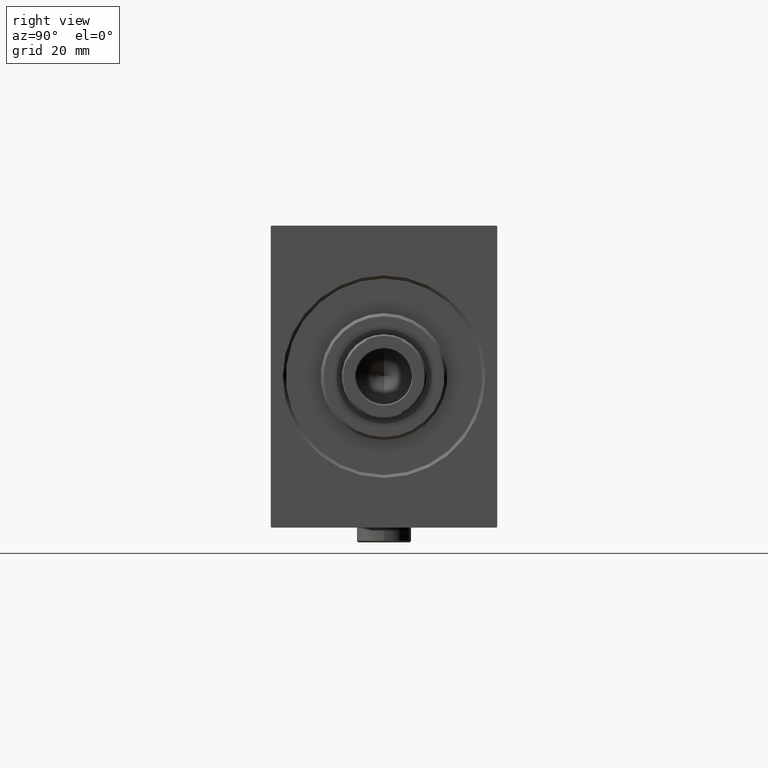
[diagram: clean part render]
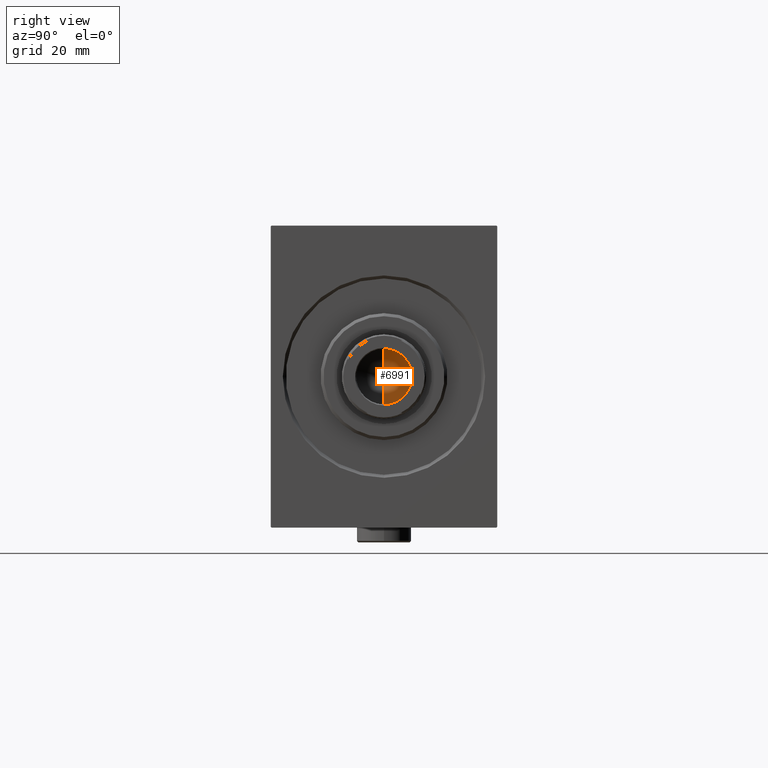
[diagram: same view with one face highlighted and labeled with its STEP entity id]
A machine part, right view. The second image highlights one B-rep face of the part: STEP entity #6991.
In plain terms, the highlighted conical surface has half-angle 59 deg.
Its self-contained STEP definition (entity closure, byte-faithful):
#510 = EDGE_CURVE ( 'NONE', #7712, #16893, #40880, .T. ) ;
#1192 = ORIENTED_EDGE ( 'NONE', *, *, #510, .T. ) ;
#1213 = CIRCLE ( 'NONE', #17703, 9.249999999999994671 ) ;
#2403 = VERTEX_POINT ( 'NONE', #2573 ) ;
#2573 = CARTESIAN_POINT ( 'NONE',  ( -9.249999999999994671, 1.132798289211300909E-15, 166.0000000000000000 ) ) ;
#3534 = DIRECTION ( 'NONE',  ( -0.000000000000000000, -0.000000000000000000, 1.000000000000000000 ) ) ;
#5342 = EDGE_CURVE ( 'NONE', #16893, #2403, #1213, .T. ) ;
#6991 = ADVANCED_FACE ( 'NONE', ( #32735 ), #18436, .F. ) ;
#7712 = VERTEX_POINT ( 'NONE', #15053 ) ;
#8084 = CARTESIAN_POINT ( 'NONE',  ( 9.249999999999994671, 0.000000000000000000, 166.0000000000000000 ) ) ;
#10143 = CARTESIAN_POINT ( 'NONE',  ( 9.249999999999994671, 0.000000000000000000, 166.0000000000000000 ) ) ;
#10968 = ORIENTED_EDGE ( 'NONE', *, *, #5342, .T. ) ;
#15053 = CARTESIAN_POINT ( 'NONE',  ( -6.793016015247754405E-15, 0.000000000000000000, 160.4420392739950501 ) ) ;
#16893 = VERTEX_POINT ( 'NONE', #8084 ) ;
#17703 = AXIS2_PLACEMENT_3D ( 'NONE', #37407, #3534, #23928 ) ;
#18436 = CONICAL_SURFACE ( 'NONE', #43520, 9.249999999999994671, 1.029744258676652535 ) ;
#18829 = CARTESIAN_POINT ( 'NONE',  ( 0.000000000000000000, 0.000000000000000000, 166.0000000000000000 ) ) ;
#19504 = CARTESIAN_POINT ( 'NONE',  ( -9.249999999999994671, 1.132798289211300909E-15, 166.0000000000000000 ) ) ;
#22159 = EDGE_CURVE ( 'NONE', #7712, #2403, #36570, .T. ) ;
#23807 = DIRECTION ( 'NONE',  ( 0.8571673007021113344, 0.000000000000000000, 0.5150380749100558209 ) ) ;
#23928 = DIRECTION ( 'NONE',  ( 1.000000000000000000, 0.000000000000000000, 0.000000000000000000 ) ) ;
#25556 = DIRECTION ( 'NONE',  ( 1.000000000000000000, 0.000000000000000000, 0.000000000000000000 ) ) ;
#25794 = EDGE_LOOP ( 'NONE', ( #39984, #1192, #10968 ) ) ;
#29845 = VECTOR ( 'NONE', #23807, 1000.000000000000000 ) ;
#32735 = FACE_OUTER_BOUND ( 'NONE', #25794, .T. ) ;
#33187 = DIRECTION ( 'NONE',  ( -0.000000000000000000, -0.000000000000000000, 1.000000000000000000 ) ) ;
#35529 = VECTOR ( 'NONE', #43076, 1000.000000000000000 ) ;
#36570 = LINE ( 'NONE', #19504, #35529 ) ;
#37407 = CARTESIAN_POINT ( 'NONE',  ( 0.000000000000000000, 0.000000000000000000, 166.0000000000000000 ) ) ;
#39984 = ORIENTED_EDGE ( 'NONE', *, *, #22159, .F. ) ;
#40880 = LINE ( 'NONE', #10143, #29845 ) ;
#43076 = DIRECTION ( 'NONE',  ( -0.8571673007021113344, 1.049727191138617463E-16, 0.5150380749100558209 ) ) ;
#43520 = AXIS2_PLACEMENT_3D ( 'NONE', #18829, #33187, #25556 ) ;